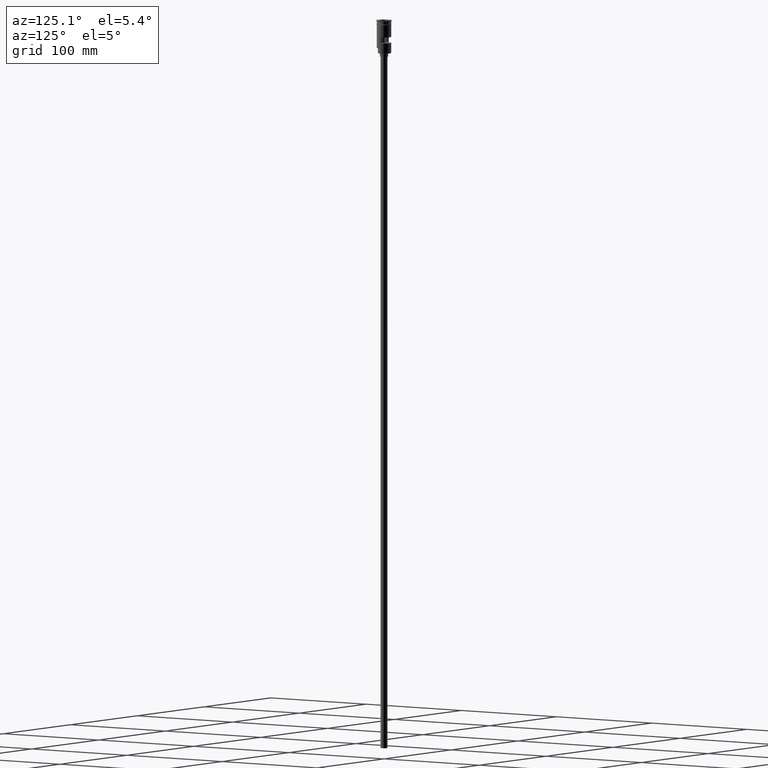
[diagram: clean part render]
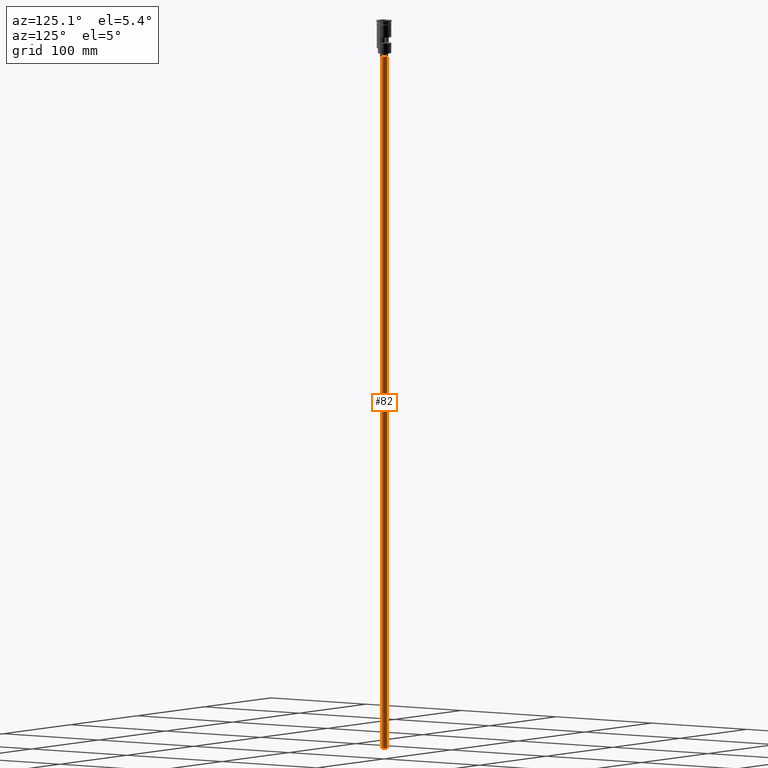
[diagram: same view with one face highlighted and labeled with its STEP entity id]
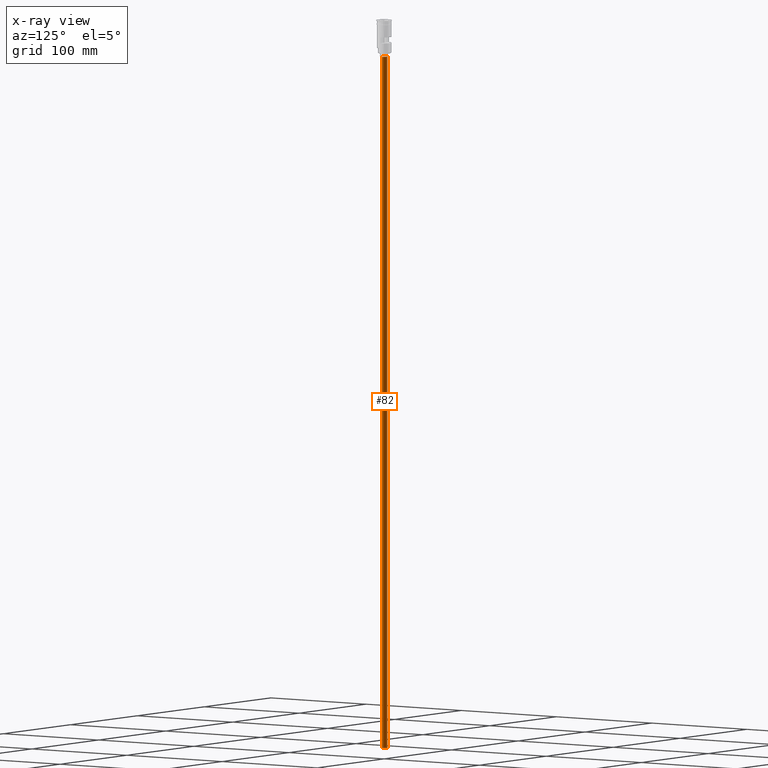
[diagram: x-ray of the same camera — body ghosted, the highlighted face saturated]
A machine part, auxiliary view. The second image highlights one B-rep face of the part: STEP entity #82.
The next image is the same camera in x-ray: the body ghosted, the highlighted face saturated — about 0% of this face is hidden behind the body in this view.
In plain terms, the highlighted cylindrical surface (edge-blend (fillet) strip) has radius 3 mm, axis along (-0, -0, 1).
Its self-contained STEP definition (entity closure, byte-faithful):
#3 = DIRECTION ( 'NONE',  ( -1.000000000000000000, 0.000000000000000000, 0.000000000000000000 ) ) ;
#59 = EDGE_CURVE ( 'NONE', #381, #1218, #371, .T. ) ;
#82 = ADVANCED_FACE ( 'NONE', ( #231 ), #717, .T. ) ;
#122 = EDGE_CURVE ( 'NONE', #1300, #737, #702, .T. ) ;
#124 = DIRECTION ( 'NONE',  ( -0.000000000000000000, -0.000000000000000000, 1.000000000000000000 ) ) ;
#133 = DIRECTION ( 'NONE',  ( 1.000000000000000000, 0.000000000000000000, 0.000000000000000000 ) ) ;
#214 = EDGE_LOOP ( 'NONE', ( #547, #624, #1561, #1428 ) ) ;
#231 = FACE_OUTER_BOUND ( 'NONE', #214, .T. ) ;
#285 = CARTESIAN_POINT ( 'NONE',  ( 0.000000000000000000, 0.000000000000000000, -31.50000000000000000 ) ) ;
#370 = CARTESIAN_POINT ( 'NONE',  ( 3.000000000000000444, 0.000000000000000000, -628.5000000000000000 ) ) ;
#371 = CIRCLE ( 'NONE', #1502, 3.000000000000000444 ) ;
#381 = VERTEX_POINT ( 'NONE', #1138 ) ;
#530 = LINE ( 'NONE', #647, #1292 ) ;
#547 = ORIENTED_EDGE ( 'NONE', *, *, #59, .F. ) ;
#593 = CARTESIAN_POINT ( 'NONE',  ( 0.000000000000000000, 0.000000000000000000, -628.5000000000000000 ) ) ;
#624 = ORIENTED_EDGE ( 'NONE', *, *, #1019, .T. ) ;
#647 = CARTESIAN_POINT ( 'NONE',  ( -3.000000000000000444, 3.673940397442060361E-16, -628.5000000000000000 ) ) ;
#702 = CIRCLE ( 'NONE', #1586, 3.000000000000000444 ) ;
#717 = CYLINDRICAL_SURFACE ( 'NONE', #780, 3.000000000000000444 ) ;
#737 = VERTEX_POINT ( 'NONE', #1404 ) ;
#751 = DIRECTION ( 'NONE',  ( -1.000000000000000000, 0.000000000000000000, 0.000000000000000000 ) ) ;
#780 = AXIS2_PLACEMENT_3D ( 'NONE', #1238, #1221, #133 ) ;
#788 = CARTESIAN_POINT ( 'NONE',  ( -3.000000000000000444, 3.673940397442060361E-16, -31.50000000000000000 ) ) ;
#920 = EDGE_CURVE ( 'NONE', #1218, #737, #1450, .T. ) ;
#1019 = EDGE_CURVE ( 'NONE', #381, #1300, #530, .T. ) ;
#1051 = CARTESIAN_POINT ( 'NONE',  ( 3.000000000000000444, 0.000000000000000000, -628.5000000000000000 ) ) ;
#1081 = DIRECTION ( 'NONE',  ( 0.000000000000000000, 0.000000000000000000, -1.000000000000000000 ) ) ;
#1138 = CARTESIAN_POINT ( 'NONE',  ( -3.000000000000000444, 3.673940397442060361E-16, -628.5000000000000000 ) ) ;
#1144 = DIRECTION ( 'NONE',  ( -0.000000000000000000, -0.000000000000000000, 1.000000000000000000 ) ) ;
#1199 = VECTOR ( 'NONE', #124, 1000.000000000000000 ) ;
#1218 = VERTEX_POINT ( 'NONE', #1051 ) ;
#1221 = DIRECTION ( 'NONE',  ( -0.000000000000000000, -0.000000000000000000, 1.000000000000000000 ) ) ;
#1238 = CARTESIAN_POINT ( 'NONE',  ( 0.000000000000000000, 0.000000000000000000, -628.5000000000000000 ) ) ;
#1292 = VECTOR ( 'NONE', #1144, 1000.000000000000000 ) ;
#1300 = VERTEX_POINT ( 'NONE', #788 ) ;
#1404 = CARTESIAN_POINT ( 'NONE',  ( 3.000000000000000444, 0.000000000000000000, -31.50000000000000000 ) ) ;
#1428 = ORIENTED_EDGE ( 'NONE', *, *, #920, .F. ) ;
#1450 = LINE ( 'NONE', #370, #1199 ) ;
#1502 = AXIS2_PLACEMENT_3D ( 'NONE', #593, #1081, #3 ) ;
#1506 = DIRECTION ( 'NONE',  ( 0.000000000000000000, 0.000000000000000000, -1.000000000000000000 ) ) ;
#1561 = ORIENTED_EDGE ( 'NONE', *, *, #122, .T. ) ;
#1586 = AXIS2_PLACEMENT_3D ( 'NONE', #285, #1506, #751 ) ;